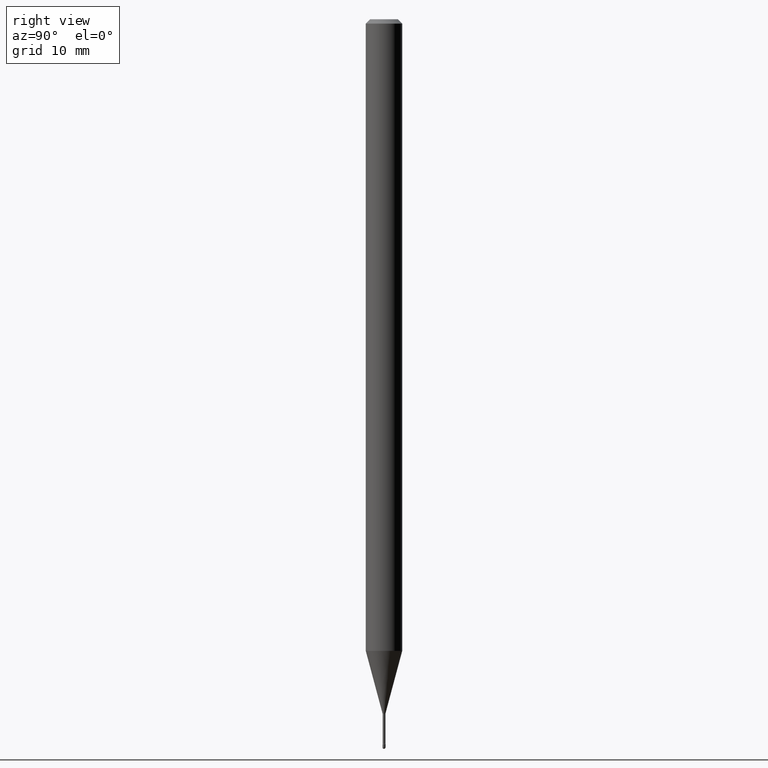
[diagram: clean part render]
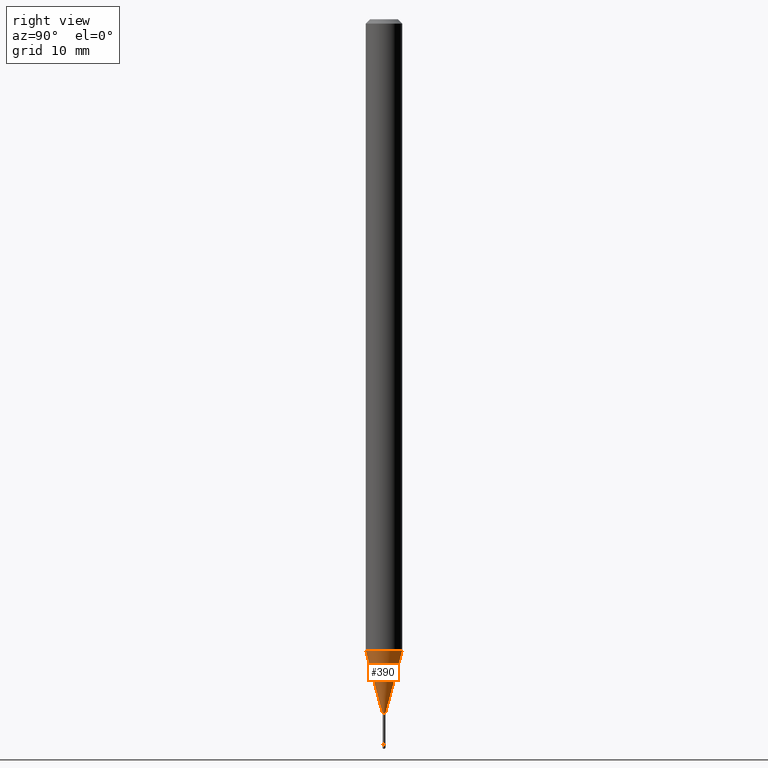
[diagram: same view with one face highlighted and labeled with its STEP entity id]
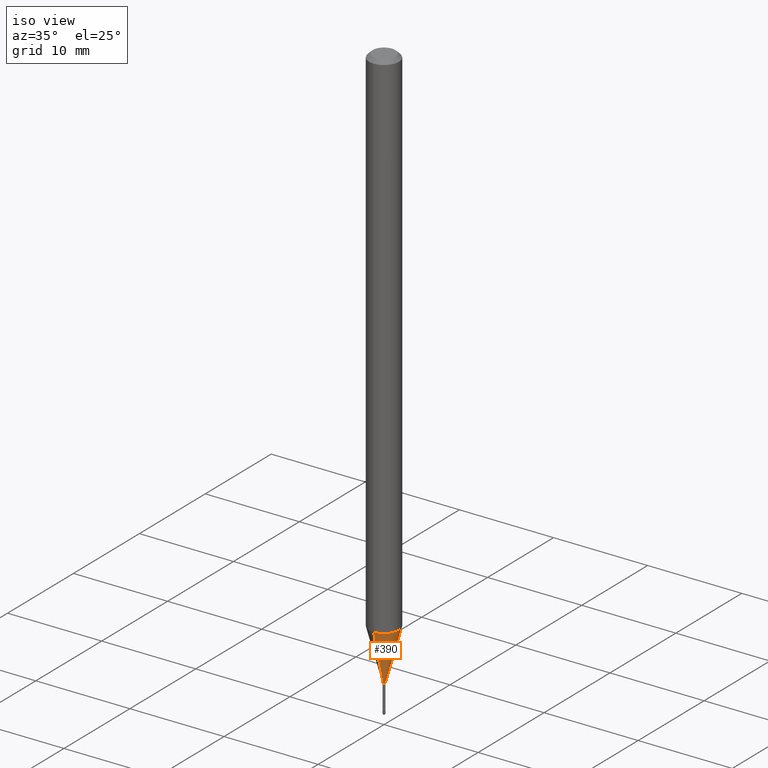
[diagram: same view with one face highlighted and labeled with its STEP entity id]
A machine part, right view. The second image highlights one B-rep face of the part: STEP entity #390.
A second angle (iso view) of the same face is appended — the face is thin or edge-on in the first view.
In plain terms, the highlighted conical surface has half-angle 15 deg.
Its self-contained STEP definition (entity closure, byte-faithful):
#17 = DIRECTION ( 'NONE',  ( -2.446185364487664325E-29, 3.490455186569959815E-15, 1.000000000000000000 ) ) ;
#33 = CARTESIAN_POINT ( 'NONE',  ( 3.702718207188244706E-17, 0.005211112605655679637, -2.378092501787273605 ) ) ;
#41 = VERTEX_POINT ( 'NONE', #507 ) ;
#61 = AXIS2_PLACEMENT_3D ( 'NONE', #512, #198, #156 ) ;
#83 = LINE ( 'NONE', #33, #562 ) ;
#96 = EDGE_CURVE ( 'NONE', #203, #345, #383, .T. ) ;
#109 = CARTESIAN_POINT ( 'NONE',  ( -3.638900483451383026E-17, -0.005211112605672280074, -2.378092501787273605 ) ) ;
#125 = AXIS2_PLACEMENT_3D ( 'NONE', #505, #17, #187 ) ;
#156 = DIRECTION ( 'NONE',  ( -6.982962677686265922E-15, -1.000000000000000000, 0.000000000000000000 ) ) ;
#176 = CARTESIAN_POINT ( 'NONE',  ( 5.817255073269882927E-29, -8.300625307006519978E-15, -2.378092501787273605 ) ) ;
#187 = DIRECTION ( 'NONE',  ( -6.982962677686265922E-15, -1.000000000000000000, 4.370956789862821150E-15 ) ) ;
#196 = ORIENTED_EDGE ( 'NONE', *, *, #530, .T. ) ;
#198 = DIRECTION ( 'NONE',  ( -2.446185364487664325E-29, 3.490455186569959815E-15, 1.000000000000000000 ) ) ;
#203 = VERTEX_POINT ( 'NONE', #373 ) ;
#229 = CIRCLE ( 'NONE', #125, 0.06250000000000000000 ) ;
#233 = EDGE_CURVE ( 'NONE', #41, #464, #229, .T. ) ;
#247 = ORIENTED_EDGE ( 'NONE', *, *, #96, .T. ) ;
#268 = CONICAL_SURFACE ( 'NONE', #61, 0.005211112605663980289, 0.2617993877991496854 ) ;
#279 = CARTESIAN_POINT ( 'NONE',  ( 2.405581959609991680E-16, 0.005211112605655679637, -2.378092501787273605 ) ) ;
#295 = ORIENTED_EDGE ( 'NONE', *, *, #233, .F. ) ;
#345 = VERTEX_POINT ( 'NONE', #279 ) ;
#353 = DIRECTION ( 'NONE',  ( -2.446185364487664325E-29, 3.490455186569959815E-15, 1.000000000000000000 ) ) ;
#367 = EDGE_LOOP ( 'NONE', ( #247, #196, #295, #428 ) ) ;
#373 = CARTESIAN_POINT ( 'NONE',  ( -3.638900483451383026E-17, -0.005211112605672280074, -2.378092501787273605 ) ) ;
#375 = FACE_OUTER_BOUND ( 'NONE', #367, .T. ) ;
#383 = CIRCLE ( 'NONE', #509, 0.005211112605663980289 ) ;
#390 = ADVANCED_FACE ( 'NONE', ( #375 ), #268, .T. ) ;
#394 = CARTESIAN_POINT ( 'NONE',  ( 4.440892098501154699E-16, 0.06249999999999243661, -2.164287463322519756 ) ) ;
#401 = DIRECTION ( 'NONE',  ( -6.982962677686265922E-15, -1.000000000000000000, 0.000000000000000000 ) ) ;
#413 = LINE ( 'NONE', #109, #451 ) ;
#428 = ORIENTED_EDGE ( 'NONE', *, *, #435, .F. ) ;
#430 = DIRECTION ( 'NONE',  ( -1.807323732225326195E-15, -0.2588190451025176309, 0.9659258262890690894 ) ) ;
#435 = EDGE_CURVE ( 'NONE', #203, #41, #413, .T. ) ;
#451 = VECTOR ( 'NONE', #430, 39.37007874015748854 ) ;
#464 = VERTEX_POINT ( 'NONE', #394 ) ;
#505 = CARTESIAN_POINT ( 'NONE',  ( 5.294248317323680554E-29, -7.554348401582429406E-15, -2.164287463322519312 ) ) ;
#507 = CARTESIAN_POINT ( 'NONE',  ( -4.364351673553387664E-16, -0.06250000000000757727, -2.164287463322519312 ) ) ;
#509 = AXIS2_PLACEMENT_3D ( 'NONE', #176, #353, #401 ) ;
#512 = CARTESIAN_POINT ( 'NONE',  ( 5.817255073269882927E-29, -8.300625307006519978E-15, -2.378092501787273605 ) ) ;
#530 = EDGE_CURVE ( 'NONE', #345, #464, #83, .T. ) ;
#552 = DIRECTION ( 'NONE',  ( 1.839019923739596371E-15, 0.2588190451025244032, 0.9659258262890673130 ) ) ;
#562 = VECTOR ( 'NONE', #552, 39.37007874015748143 ) ;